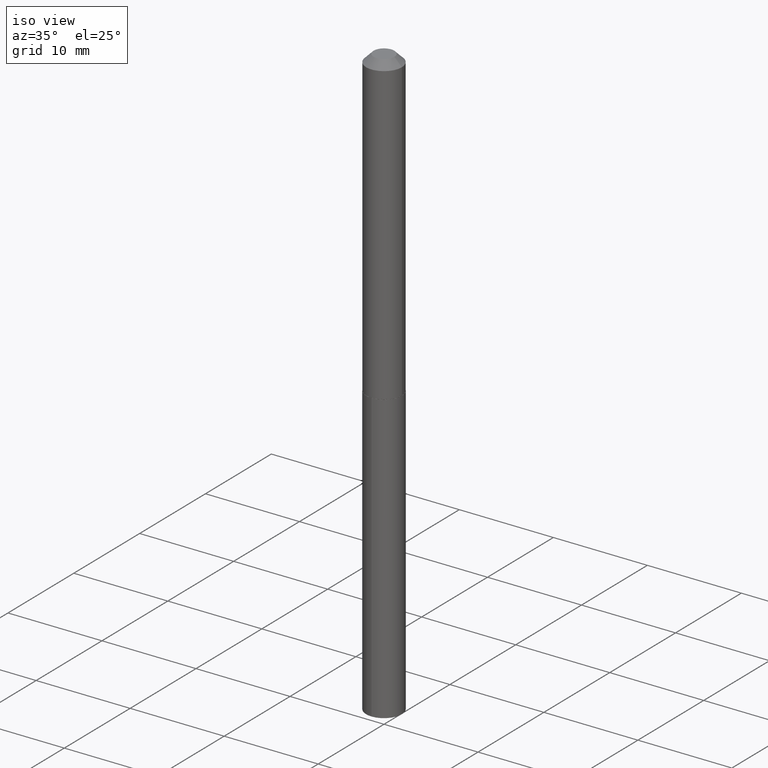
[diagram: clean part render]
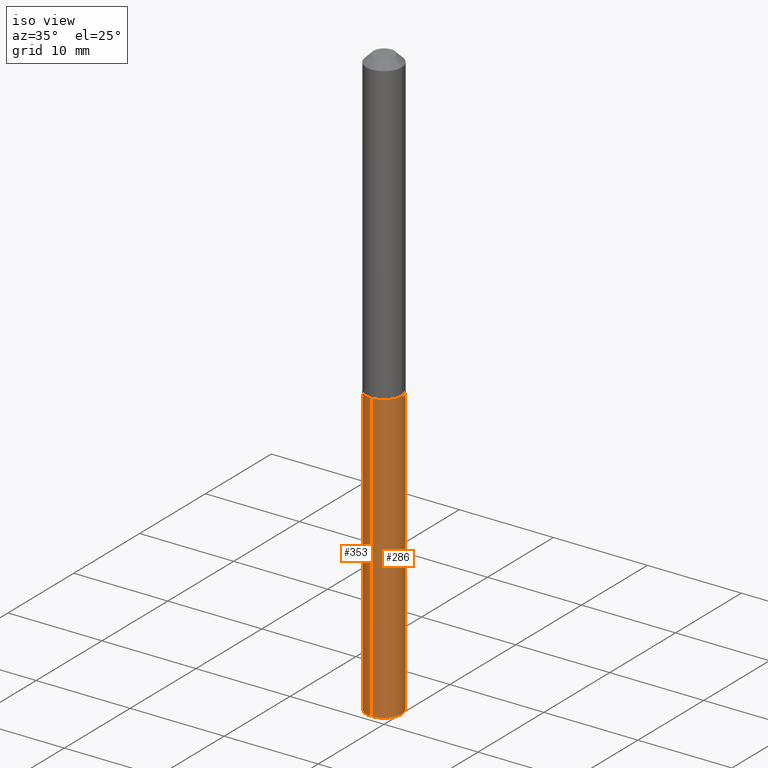
[diagram: same view with one multi-face feature highlighted, each face labeled with its STEP entity id]
A machine part, iso view. The highlighted faces form ONE feature: a constant-radius fillet chain: 2 tangent blend faces with common blend radius 1.8986 mm. The faces share edges in the B-rep.
Their STEP definitions:
[1] entity #286 (Cylinder):
#28 = VECTOR ( 'NONE', #308, 39.37007874015748143 ) ;
#32 = DIRECTION ( 'NONE',  ( -2.445481916838262350E-29, 3.491462563641657322E-15, 1.000000000000000000 ) ) ;
#35 = EDGE_CURVE ( 'NONE', #198, #349, #326, .T. ) ;
#37 = DIRECTION ( 'NONE',  ( -6.982962677686266711E-15, -1.000000000000000000, 3.654646145370252101E-15 ) ) ;
#38 = DIRECTION ( 'NONE',  ( -6.982962677686266711E-15, -1.000000000000000000, 0.000000000000000000 ) ) ;
#51 = LINE ( 'NONE', #203, #52 ) ;
#52 = VECTOR ( 'NONE', #335, 39.37007874015748143 ) ;
#66 = AXIS2_PLACEMENT_3D ( 'NONE', #71, #32, #38 ) ;
#71 = CARTESIAN_POINT ( 'NONE',  ( 6.064707030940299706E-29, -8.658749128667179165E-15, -2.479970797865774124 ) ) ;
#76 = CARTESIAN_POINT ( 'NONE',  ( 5.311306949807357085E-16, 0.07474999999999555611, -1.274500000000000188 ) ) ;
#77 = CIRCLE ( 'NONE', #66, 0.07474999999999999700 ) ;
#87 = AXIS2_PLACEMENT_3D ( 'NONE', #106, #103, #37 ) ;
#89 = EDGE_CURVE ( 'NONE', #114, #198, #363, .T. ) ;
#94 = CARTESIAN_POINT ( 'NONE',  ( -5.219764601570172411E-16, -0.07475000000000445177, -1.274499999999999744 ) ) ;
#97 = EDGE_CURVE ( 'NONE', #114, #112, #77, .T. ) ;
#103 = DIRECTION ( 'NONE',  ( -2.445481916838262350E-29, 3.491462563641657322E-15, 1.000000000000000000 ) ) ;
#106 = CARTESIAN_POINT ( 'NONE',  ( 3.116749993482956808E-29, -4.449892966355589302E-15, -1.274499999999999966 ) ) ;
#112 = VERTEX_POINT ( 'NONE', #250 ) ;
#114 = VERTEX_POINT ( 'NONE', #372 ) ;
#120 = DIRECTION ( 'NONE',  ( -6.982962677686265133E-15, -1.000000000000000000, 3.654646145370252101E-15 ) ) ;
#135 = ORIENTED_EDGE ( 'NONE', *, *, #89, .F. ) ;
#140 = CARTESIAN_POINT ( 'NONE',  ( 3.116749993482956808E-29, -4.449892966355589302E-15, -1.274499999999999966 ) ) ;
#175 = EDGE_CURVE ( 'NONE', #112, #349, #51, .T. ) ;
#190 = ORIENTED_EDGE ( 'NONE', *, *, #175, .T. ) ;
#196 = ORIENTED_EDGE ( 'NONE', *, *, #35, .F. ) ;
#198 = VERTEX_POINT ( 'NONE', #212 ) ;
#203 = CARTESIAN_POINT ( 'NONE',  ( 5.311306949807060276E-16, 0.07474999999999555611, -1.274500000000000188 ) ) ;
#212 = CARTESIAN_POINT ( 'NONE',  ( -5.219764601570171425E-16, -0.07475000000000443789, -1.274499999999999744 ) ) ;
#249 = CYLINDRICAL_SURFACE ( 'NONE', #87, 0.07474999999999999700 ) ;
#250 = CARTESIAN_POINT ( 'NONE',  ( 5.311306949807354127E-16, 0.07474999999999132339, -2.479970797865774124 ) ) ;
#256 = EDGE_LOOP ( 'NONE', ( #378, #190, #196, #135 ) ) ;
#265 = AXIS2_PLACEMENT_3D ( 'NONE', #140, #298, #120 ) ;
#286 = ADVANCED_FACE ( 'NONE', ( #366 ), #249, .T. ) ;
#298 = DIRECTION ( 'NONE',  ( -2.445481916838262350E-29, 3.491462563641657322E-15, 1.000000000000000000 ) ) ;
#308 = DIRECTION ( 'NONE',  ( -2.445481916838262070E-29, 3.491462563641657716E-15, 1.000000000000000000 ) ) ;
#326 = CIRCLE ( 'NONE', #265, 0.07474999999999999700 ) ;
#335 = DIRECTION ( 'NONE',  ( -2.445481916838262070E-29, 3.491462563641657716E-15, 1.000000000000000000 ) ) ;
#349 = VERTEX_POINT ( 'NONE', #76 ) ;
#363 = LINE ( 'NONE', #94, #28 ) ;
#366 = FACE_OUTER_BOUND ( 'NONE', #256, .T. ) ;
#372 = CARTESIAN_POINT ( 'NONE',  ( -5.219764601569876588E-16, -0.07475000000000864286, -2.479970797865774124 ) ) ;
#378 = ORIENTED_EDGE ( 'NONE', *, *, #97, .T. ) ;
[2] entity #353 (Cylinder):
#15 = ORIENTED_EDGE ( 'NONE', *, *, #225, .F. ) ;
#18 = ORIENTED_EDGE ( 'NONE', *, *, #89, .T. ) ;
#24 = DIRECTION ( 'NONE',  ( -2.445481916838262350E-29, 3.491462563641657322E-15, 1.000000000000000000 ) ) ;
#28 = VECTOR ( 'NONE', #308, 39.37007874015748143 ) ;
#43 = DIRECTION ( 'NONE',  ( -6.982962677686266711E-15, -1.000000000000000000, 3.654646145370252101E-15 ) ) ;
#51 = LINE ( 'NONE', #203, #52 ) ;
#52 = VECTOR ( 'NONE', #335, 39.37007874015748143 ) ;
#64 = EDGE_CURVE ( 'NONE', #112, #114, #157, .T. ) ;
#73 = ORIENTED_EDGE ( 'NONE', *, *, #64, .T. ) ;
#76 = CARTESIAN_POINT ( 'NONE',  ( 5.311306949807357085E-16, 0.07474999999999555611, -1.274500000000000188 ) ) ;
#80 = CYLINDRICAL_SURFACE ( 'NONE', #172, 0.07474999999999999700 ) ;
#89 = EDGE_CURVE ( 'NONE', #114, #198, #363, .T. ) ;
#94 = CARTESIAN_POINT ( 'NONE',  ( -5.219764601570172411E-16, -0.07475000000000445177, -1.274499999999999744 ) ) ;
#95 = CIRCLE ( 'NONE', #108, 0.07474999999999999700 ) ;
#108 = AXIS2_PLACEMENT_3D ( 'NONE', #151, #142, #149 ) ;
#112 = VERTEX_POINT ( 'NONE', #250 ) ;
#114 = VERTEX_POINT ( 'NONE', #372 ) ;
#125 = CARTESIAN_POINT ( 'NONE',  ( 6.064707030940299706E-29, -8.658749128667179165E-15, -2.479970797865774124 ) ) ;
#142 = DIRECTION ( 'NONE',  ( -2.445481916838262350E-29, 3.491462563641657322E-15, 1.000000000000000000 ) ) ;
#149 = DIRECTION ( 'NONE',  ( -6.982962677686265133E-15, -1.000000000000000000, 3.654646145370252101E-15 ) ) ;
#151 = CARTESIAN_POINT ( 'NONE',  ( 3.116749993482956808E-29, -4.449892966355589302E-15, -1.274499999999999966 ) ) ;
#157 = CIRCLE ( 'NONE', #355, 0.07474999999999999700 ) ;
#172 = AXIS2_PLACEMENT_3D ( 'NONE', #197, #24, #43 ) ;
#175 = EDGE_CURVE ( 'NONE', #112, #349, #51, .T. ) ;
#197 = CARTESIAN_POINT ( 'NONE',  ( 3.116749993482956808E-29, -4.449892966355589302E-15, -1.274499999999999966 ) ) ;
#198 = VERTEX_POINT ( 'NONE', #212 ) ;
#203 = CARTESIAN_POINT ( 'NONE',  ( 5.311306949807060276E-16, 0.07474999999999555611, -1.274500000000000188 ) ) ;
#212 = CARTESIAN_POINT ( 'NONE',  ( -5.219764601570171425E-16, -0.07475000000000443789, -1.274499999999999744 ) ) ;
#225 = EDGE_CURVE ( 'NONE', #349, #198, #95, .T. ) ;
#231 = DIRECTION ( 'NONE',  ( -6.982962677686266711E-15, -1.000000000000000000, 0.000000000000000000 ) ) ;
#250 = CARTESIAN_POINT ( 'NONE',  ( 5.311306949807354127E-16, 0.07474999999999132339, -2.479970797865774124 ) ) ;
#261 = DIRECTION ( 'NONE',  ( -2.445481916838262350E-29, 3.491462563641657322E-15, 1.000000000000000000 ) ) ;
#308 = DIRECTION ( 'NONE',  ( -2.445481916838262070E-29, 3.491462563641657716E-15, 1.000000000000000000 ) ) ;
#318 = FACE_OUTER_BOUND ( 'NONE', #376, .T. ) ;
#325 = ORIENTED_EDGE ( 'NONE', *, *, #175, .F. ) ;
#335 = DIRECTION ( 'NONE',  ( -2.445481916838262070E-29, 3.491462563641657716E-15, 1.000000000000000000 ) ) ;
#349 = VERTEX_POINT ( 'NONE', #76 ) ;
#353 = ADVANCED_FACE ( 'NONE', ( #318 ), #80, .T. ) ;
#355 = AXIS2_PLACEMENT_3D ( 'NONE', #125, #261, #231 ) ;
#363 = LINE ( 'NONE', #94, #28 ) ;
#372 = CARTESIAN_POINT ( 'NONE',  ( -5.219764601569876588E-16, -0.07475000000000864286, -2.479970797865774124 ) ) ;
#376 = EDGE_LOOP ( 'NONE', ( #325, #73, #18, #15 ) ) ;